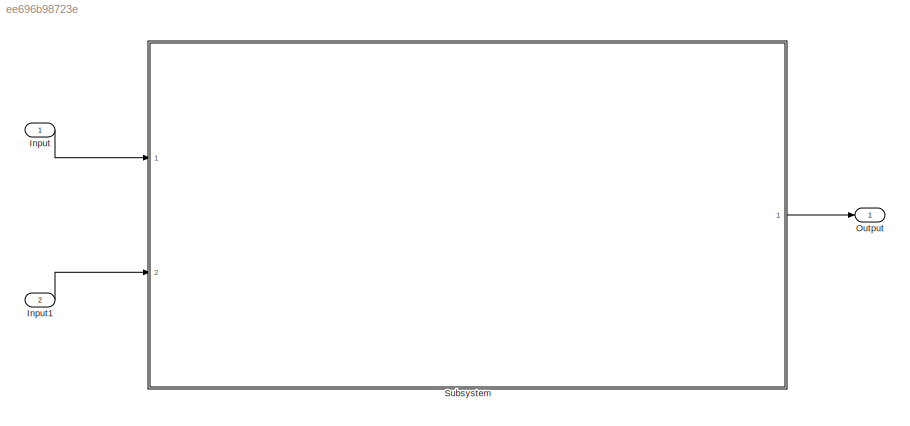
MODEL slx_ee696b98723e
KIND model
CONFIG AbsTol = auto
CONFIG EnableMultiTasking = off
CONFIG FixedStep = auto
CONFIG MaxStep = auto
CONFIG MinStep = auto
CONFIG RelTol = 1e-3
CONFIG SampleTimeConstraint = Unconstrained
CONFIG Solver = VariableStepAuto
CONFIG SolverName = VariableStepAuto
CONFIG StartTime = 0.0
CONFIG StopTime = 10.0
BLOCK [Inport] Input
  IconDisplay = Port number
BLOCK [Inport] Input1
  IconDisplay = Port number
  Port = 2
BLOCK [Outport] Output
  IconDisplay = Port number
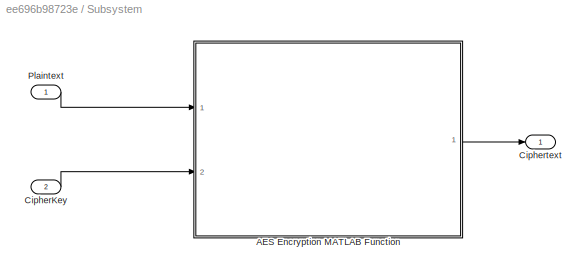
BLOCK [SubSystem] Subsystem
  Ports = [2, 1]
  RequestExecContextInheritance = off
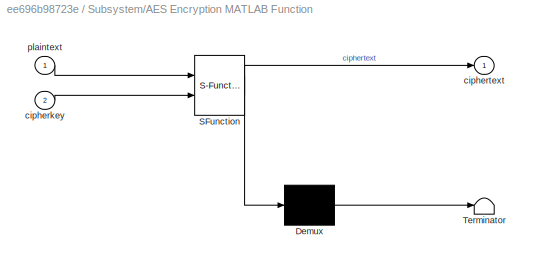
BLOCK [SubSystem] Subsystem/AES Encryption MATLAB Function
  ErrorFcn = Stateflow.Translate.translate
  PermitHierarchicalResolution = ExplicitOnly
  Ports = [2, 1]
  RequestExecContextInheritance = off
  SFBlockType = MATLAB Function
  TreatAsAtomicUnit = on
BLOCK [Demux] Subsystem/AES Encryption MATLAB Function/ Demux 
  Outputs = 1
  Ports = [1, 1]
BLOCK [S-Function] Subsystem/AES Encryption MATLAB Function/ SFunction 
  EnableBusSupport = on
  FunctionName = sf_sfun
  PortCounts = [2 2]
  Ports = [2, 2]
  SFcnIsStateOwnerBlock = off
  SFunctionDeploymentMode = off
  Tag = Stateflow S-Function AESEncryption_141121 3
BLOCK [Terminator] Subsystem/AES Encryption MATLAB Function/ Terminator 
BLOCK [Inport] Subsystem/AES Encryption MATLAB Function/cipherkey
  IconDisplay = Port number
  Port = 2
BLOCK [Outport] Subsystem/AES Encryption MATLAB Function/ciphertext
  IconDisplay = Port number
BLOCK [Inport] Subsystem/AES Encryption MATLAB Function/plaintext
  IconDisplay = Port number
BLOCK [Inport] Subsystem/CipherKey
  IconDisplay = Port number
  Port = 2
BLOCK [Outport] Subsystem/Ciphertext
  IconDisplay = Port number
BLOCK [Inport] Subsystem/Plaintext
  IconDisplay = Port number
LINE Input1:1 -> Subsystem:2
LINE Input:1 -> Subsystem:1
LINE Subsystem/AES Encryption MATLAB Function:1 -> Subsystem/Ciphertext:1
LINE Subsystem/CipherKey:1 -> Subsystem/AES Encryption MATLAB Function:2
LINE Subsystem/Plaintext:1 -> Subsystem/AES Encryption MATLAB Function:1
LINE Subsystem:1 -> Output:1
CHART Subsystem/AES Encryption MATLAB Function states=1 transitions=1
  STATE_LABEL 'eML_blk_kernel()'
  STATE_LABEL 'SCRIPT:\n%%%%%%%%%%%%%%%%%%%%%%%%%%%%%%%%%%%%%%%%%%%%%%%%%%%%%%%%%%%%%%%%%%%%%%%%%%\n% MATLAB design: Advanced Encryption System (AES-128)\n% [1] Advanced Encryption Standard (AES) (FIPS PUB 197)\n%\n% Key Design pattern covered in this example: \n% (1) This example uses fixed point and integer operators. \n% (2) Bitwise Operator support\n%\n%\n% Note: This design is already in fixed point and suitable for ...<+3608ch>'
